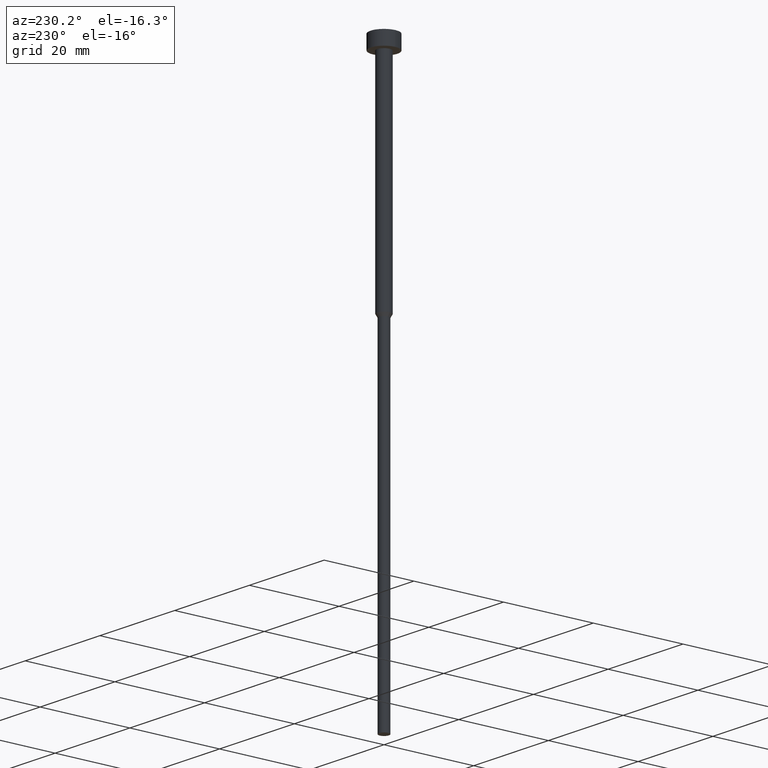
[diagram: clean part render]
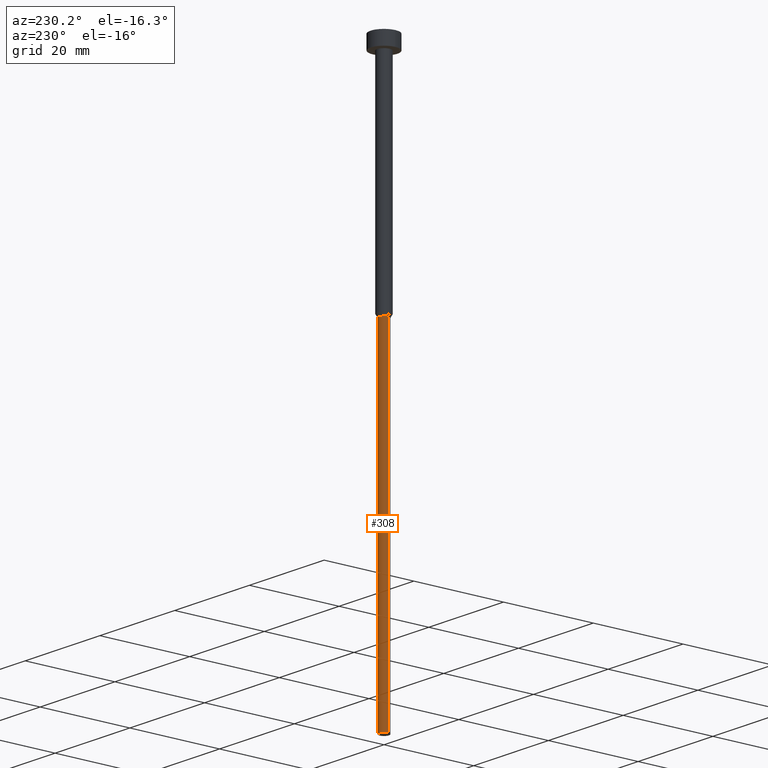
[diagram: same view with one face highlighted and labeled with its STEP entity id]
A machine part, auxiliary view. The second image highlights one B-rep face of the part: STEP entity #308.
In plain terms, the highlighted cylindrical surface (edge-blend (fillet) strip) has radius 1.1 mm, axis along (-0, -0, 1).
Its self-contained STEP definition (entity closure, byte-faithful):
#1 = CARTESIAN_POINT ( 'NONE',  ( 1.100000000000000089, 0.000000000000000000, -50.69282032302754715 ) ) ;
#3 = EDGE_CURVE ( 'NONE', #70, #236, #242, .T. ) ;
#9 = LINE ( 'NONE', #37, #30 ) ;
#15 = DIRECTION ( 'NONE',  ( 1.000000000000000000, 0.000000000000000000, 0.000000000000000000 ) ) ;
#30 = VECTOR ( 'NONE', #300, 1000.000000000000000 ) ;
#37 = CARTESIAN_POINT ( 'NONE',  ( -1.100000000000000089, 1.347111479062088503E-16, 0.000000000000000000 ) ) ;
#41 = DIRECTION ( 'NONE',  ( -0.000000000000000000, -0.000000000000000000, 1.000000000000000000 ) ) ;
#47 = CARTESIAN_POINT ( 'NONE',  ( 0.000000000000000000, 0.000000000000000000, -125.0000000000000000 ) ) ;
#70 = VERTEX_POINT ( 'NONE', #1 ) ;
#84 = VERTEX_POINT ( 'NONE', #217 ) ;
#88 = FACE_OUTER_BOUND ( 'NONE', #181, .T. ) ;
#108 = DIRECTION ( 'NONE',  ( 1.000000000000000000, 0.000000000000000000, 0.000000000000000000 ) ) ;
#110 = CARTESIAN_POINT ( 'NONE',  ( -1.100000000000000089, 1.347111479062088503E-16, -50.69282032302754715 ) ) ;
#112 = DIRECTION ( 'NONE',  ( 1.000000000000000000, 0.000000000000000000, 0.000000000000000000 ) ) ;
#115 = ORIENTED_EDGE ( 'NONE', *, *, #216, .T. ) ;
#151 = AXIS2_PLACEMENT_3D ( 'NONE', #173, #41, #15 ) ;
#173 = CARTESIAN_POINT ( 'NONE',  ( 0.000000000000000000, 0.000000000000000000, -50.69282032302754715 ) ) ;
#181 = EDGE_LOOP ( 'NONE', ( #226, #115, #255, #301 ) ) ;
#184 = DIRECTION ( 'NONE',  ( -0.000000000000000000, -0.000000000000000000, 1.000000000000000000 ) ) ;
#198 = CYLINDRICAL_SURFACE ( 'NONE', #287, 1.100000000000000089 ) ;
#206 = LINE ( 'NONE', #342, #341 ) ;
#216 = EDGE_CURVE ( 'NONE', #261, #236, #9, .T. ) ;
#217 = CARTESIAN_POINT ( 'NONE',  ( 1.100000000000000089, 0.000000000000000000, -125.0000000000000000 ) ) ;
#225 = CIRCLE ( 'NONE', #334, 1.100000000000000089 ) ;
#226 = ORIENTED_EDGE ( 'NONE', *, *, #254, .T. ) ;
#236 = VERTEX_POINT ( 'NONE', #110 ) ;
#242 = CIRCLE ( 'NONE', #151, 1.100000000000000089 ) ;
#254 = EDGE_CURVE ( 'NONE', #84, #261, #225, .T. ) ;
#255 = ORIENTED_EDGE ( 'NONE', *, *, #3, .F. ) ;
#261 = VERTEX_POINT ( 'NONE', #327 ) ;
#281 = EDGE_CURVE ( 'NONE', #84, #70, #206, .T. ) ;
#287 = AXIS2_PLACEMENT_3D ( 'NONE', #320, #292, #112 ) ;
#292 = DIRECTION ( 'NONE',  ( -0.000000000000000000, -0.000000000000000000, 1.000000000000000000 ) ) ;
#300 = DIRECTION ( 'NONE',  ( -0.000000000000000000, -0.000000000000000000, 1.000000000000000000 ) ) ;
#301 = ORIENTED_EDGE ( 'NONE', *, *, #281, .F. ) ;
#308 = ADVANCED_FACE ( 'NONE', ( #88 ), #198, .T. ) ;
#320 = CARTESIAN_POINT ( 'NONE',  ( 0.000000000000000000, 0.000000000000000000, 0.000000000000000000 ) ) ;
#322 = DIRECTION ( 'NONE',  ( -0.000000000000000000, -0.000000000000000000, 1.000000000000000000 ) ) ;
#327 = CARTESIAN_POINT ( 'NONE',  ( -1.100000000000000089, 1.347111479062088503E-16, -125.0000000000000000 ) ) ;
#334 = AXIS2_PLACEMENT_3D ( 'NONE', #47, #184, #108 ) ;
#341 = VECTOR ( 'NONE', #322, 1000.000000000000000 ) ;
#342 = CARTESIAN_POINT ( 'NONE',  ( 1.100000000000000089, 0.000000000000000000, 0.000000000000000000 ) ) ;